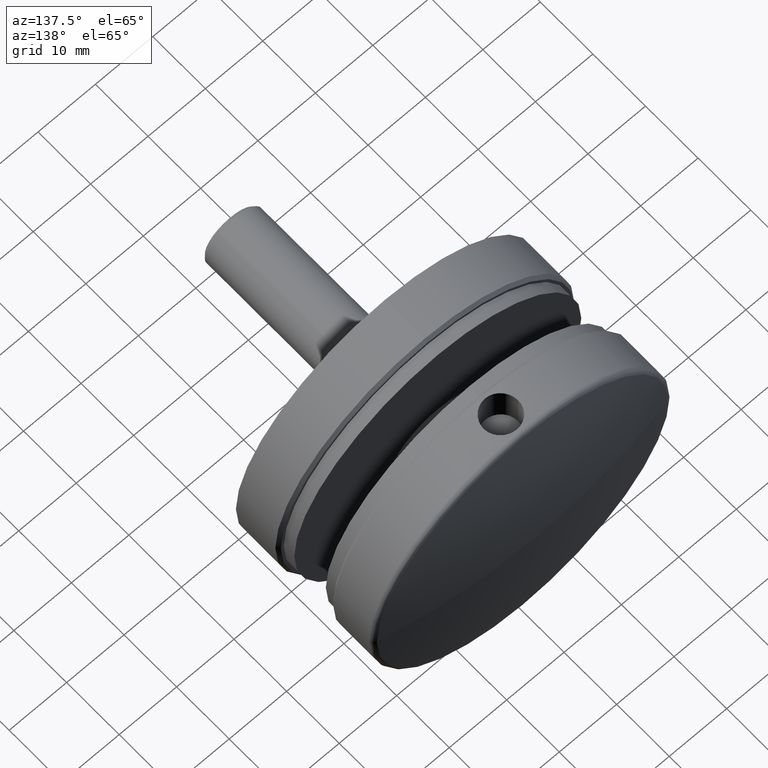
[diagram: clean part render]
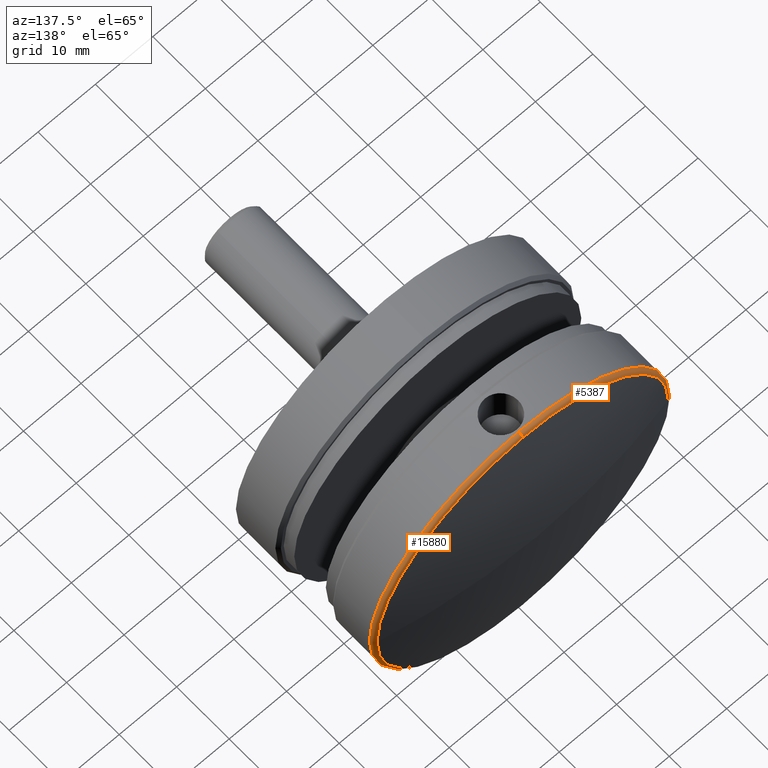
[diagram: same view with one multi-face feature highlighted, each face labeled with its STEP entity id]
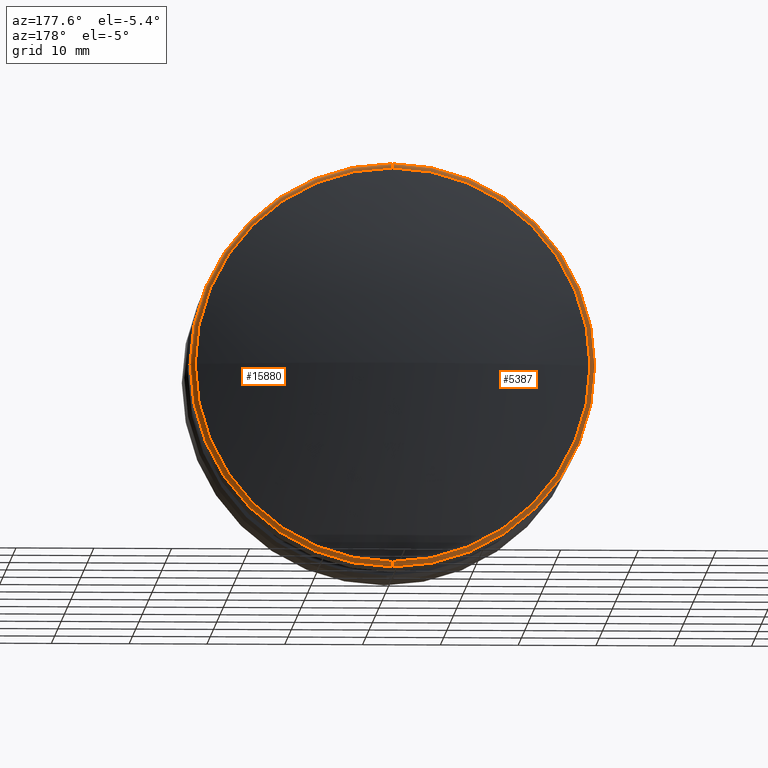
[diagram: same view with one multi-face feature highlighted, each face labeled with its STEP entity id]
A machine part, auxiliary view. The highlighted faces form ONE feature: a constant-radius fillet chain: 2 tangent blend faces with common blend radius 0.8 mm. The faces share edges in the B-rep.
A second angle (auxiliary view) of the same feature is appended — it is thin or edge-on in the first view.
Their STEP definitions:
[1] entity #15880 (Torus):
#37 = VERTEX_POINT ( 'NONE', #9659 ) ;
#276 = ORIENTED_EDGE ( 'NONE', *, *, #13153, .F. ) ;
#1598 = AXIS2_PLACEMENT_3D ( 'NONE', #4787, #16394, #8671 ) ;
#1673 = DIRECTION ( 'NONE',  ( -0.000000000000000000, -1.000000000000000000, -0.000000000000000000 ) ) ;
#1746 = EDGE_CURVE ( 'NONE', #2749, #10591, #14988, .T. ) ;
#1826 = DIRECTION ( 'NONE',  ( -1.224646799147353947E-16, 0.000000000000000000, -1.000000000000000000 ) ) ;
#1861 = DIRECTION ( 'NONE',  ( -0.000000000000000000, -1.000000000000000000, -0.000000000000000000 ) ) ;
#2610 = EDGE_LOOP ( 'NONE', ( #5706, #16255, #276, #7848, #4700 ) ) ;
#2705 = CIRCLE ( 'NONE', #8591, 25.37783004998528824 ) ;
#2749 = VERTEX_POINT ( 'NONE', #8586 ) ;
#3250 = CARTESIAN_POINT ( 'NONE',  ( 0.000000000000000000, 15.36369618043119800, -25.99999999999999645 ) ) ;
#3636 = VERTEX_POINT ( 'NONE', #3250 ) ;
#4402 = CARTESIAN_POINT ( 'NONE',  ( 0.000000000000000000, 15.36369618043119800, 0.000000000000000000 ) ) ;
#4409 = EDGE_CURVE ( 'NONE', #37, #3636, #12083, .T. ) ;
#4700 = ORIENTED_EDGE ( 'NONE', *, *, #5586, .T. ) ;
#4724 = DIRECTION ( 'NONE',  ( -0.000000000000000000, -1.000000000000000000, -0.000000000000000000 ) ) ;
#4787 = CARTESIAN_POINT ( 'NONE',  ( 0.000000000000000000, 15.36369618043119800, -25.19999999999999929 ) ) ;
#5011 = DIRECTION ( 'NONE',  ( 0.000000000000000000, 0.000000000000000000, -1.000000000000000000 ) ) ;
#5586 = EDGE_CURVE ( 'NONE', #37, #13995, #10742, .T. ) ;
#5706 = ORIENTED_EDGE ( 'NONE', *, *, #10330, .T. ) ;
#6979 = CARTESIAN_POINT ( 'NONE',  ( 3.086109933851330151E-15, 15.36369618043119800, 25.19999999999999929 ) ) ;
#7116 = AXIS2_PLACEMENT_3D ( 'NONE', #6979, #9475, #1826 ) ;
#7189 = DIRECTION ( 'NONE',  ( 0.000000000000000000, 0.000000000000000000, -1.000000000000000000 ) ) ;
#7285 = CIRCLE ( 'NONE', #7995, 25.99999999999999645 ) ;
#7460 = CARTESIAN_POINT ( 'NONE',  ( 3.184081677783118191E-15, 15.36369618043119800, 25.99999999999999645 ) ) ;
#7504 = CARTESIAN_POINT ( 'NONE',  ( 0.000000000000000000, 16.14368109908169302, 0.000000000000000000 ) ) ;
#7848 = ORIENTED_EDGE ( 'NONE', *, *, #4409, .F. ) ;
#7995 = AXIS2_PLACEMENT_3D ( 'NONE', #4402, #1861, #7189 ) ;
#8251 = CARTESIAN_POINT ( 'NONE',  ( 0.000000000000000000, 15.36369618043119800, 0.000000000000000000 ) ) ;
#8586 = CARTESIAN_POINT ( 'NONE',  ( 3.145984755892558472E-15, 16.14368109908169302, 25.37783004998528824 ) ) ;
#8591 = AXIS2_PLACEMENT_3D ( 'NONE', #12334, #4724, #12386 ) ;
#8671 = DIRECTION ( 'NONE',  ( 0.000000000000000000, 0.000000000000000000, 1.000000000000000000 ) ) ;
#9475 = DIRECTION ( 'NONE',  ( 1.000000000000000000, 0.000000000000000000, -1.224646799147353207E-16 ) ) ;
#9659 = CARTESIAN_POINT ( 'NONE',  ( 0.000000000000000000, 16.14368109908169302, -25.37783004998528824 ) ) ;
#10194 = DIRECTION ( 'NONE',  ( -0.000000000000000000, -1.000000000000000000, -0.000000000000000000 ) ) ;
#10330 = EDGE_CURVE ( 'NONE', #13995, #2749, #2705, .T. ) ;
#10591 = VERTEX_POINT ( 'NONE', #7460 ) ;
#10742 = CIRCLE ( 'NONE', #16213, 25.37783004998528824 ) ;
#12083 = CIRCLE ( 'NONE', #1598, 0.7999999999999951594 ) ;
#12334 = CARTESIAN_POINT ( 'NONE',  ( 0.000000000000000000, 16.14368109908169302, 0.000000000000000000 ) ) ;
#12335 = CARTESIAN_POINT ( 'NONE',  ( 25.37783004998529535, 16.14368109908169302, 0.000000000000000000 ) ) ;
#12374 = DIRECTION ( 'NONE',  ( 0.000000000000000000, 0.000000000000000000, -1.000000000000000000 ) ) ;
#12386 = DIRECTION ( 'NONE',  ( 0.000000000000000000, 0.000000000000000000, -1.000000000000000000 ) ) ;
#13153 = EDGE_CURVE ( 'NONE', #3636, #10591, #7285, .T. ) ;
#13995 = VERTEX_POINT ( 'NONE', #12335 ) ;
#14669 = FACE_OUTER_BOUND ( 'NONE', #2610, .T. ) ;
#14904 = AXIS2_PLACEMENT_3D ( 'NONE', #8251, #1673, #12374 ) ;
#14988 = CIRCLE ( 'NONE', #7116, 0.7999999999999951594 ) ;
#15521 = TOROIDAL_SURFACE ( 'NONE', #14904, 25.19999999999999929, 0.7999999999999949374 ) ;
#15880 = ADVANCED_FACE ( 'NONE', ( #14669 ), #15521, .T. ) ;
#16213 = AXIS2_PLACEMENT_3D ( 'NONE', #7504, #10194, #5011 ) ;
#16255 = ORIENTED_EDGE ( 'NONE', *, *, #1746, .T. ) ;
#16394 = DIRECTION ( 'NONE',  ( -1.000000000000000000, 0.000000000000000000, 0.000000000000000000 ) ) ;
[2] entity #5387 (Torus):
#37 = VERTEX_POINT ( 'NONE', #9659 ) ;
#1220 = ORIENTED_EDGE ( 'NONE', *, *, #10697, .T. ) ;
#1598 = AXIS2_PLACEMENT_3D ( 'NONE', #4787, #16394, #8671 ) ;
#1746 = EDGE_CURVE ( 'NONE', #2749, #10591, #14988, .T. ) ;
#1826 = DIRECTION ( 'NONE',  ( -1.224646799147353947E-16, 0.000000000000000000, -1.000000000000000000 ) ) ;
#2133 = CARTESIAN_POINT ( 'NONE',  ( 0.000000000000000000, 15.36369618043119800, 0.000000000000000000 ) ) ;
#2377 = ORIENTED_EDGE ( 'NONE', *, *, #4409, .T. ) ;
#2452 = CARTESIAN_POINT ( 'NONE',  ( -25.37783004998529535, 16.14368109908169302, 3.107887834002000330E-15 ) ) ;
#2749 = VERTEX_POINT ( 'NONE', #8586 ) ;
#2782 = TOROIDAL_SURFACE ( 'NONE', #14704, 25.19999999999999929, 0.7999999999999949374 ) ;
#3250 = CARTESIAN_POINT ( 'NONE',  ( 0.000000000000000000, 15.36369618043119800, -25.99999999999999645 ) ) ;
#3422 = DIRECTION ( 'NONE',  ( 0.000000000000000000, 0.000000000000000000, -1.000000000000000000 ) ) ;
#3635 = EDGE_CURVE ( 'NONE', #10591, #3636, #10925, .T. ) ;
#3636 = VERTEX_POINT ( 'NONE', #3250 ) ;
#3755 = CARTESIAN_POINT ( 'NONE',  ( 0.000000000000000000, 15.36369618043119800, 0.000000000000000000 ) ) ;
#4173 = EDGE_CURVE ( 'NONE', #4795, #37, #10314, .T. ) ;
#4409 = EDGE_CURVE ( 'NONE', #37, #3636, #12083, .T. ) ;
#4417 = DIRECTION ( 'NONE',  ( 0.000000000000000000, 0.000000000000000000, -1.000000000000000000 ) ) ;
#4787 = CARTESIAN_POINT ( 'NONE',  ( 0.000000000000000000, 15.36369618043119800, -25.19999999999999929 ) ) ;
#4794 = ORIENTED_EDGE ( 'NONE', *, *, #3635, .F. ) ;
#4795 = VERTEX_POINT ( 'NONE', #2452 ) ;
#5318 = CIRCLE ( 'NONE', #6246, 25.37783004998528824 ) ;
#5387 = ADVANCED_FACE ( 'NONE', ( #8362 ), #2782, .T. ) ;
#6246 = AXIS2_PLACEMENT_3D ( 'NONE', #13671, #14998, #4417 ) ;
#6979 = CARTESIAN_POINT ( 'NONE',  ( 3.086109933851330151E-15, 15.36369618043119800, 25.19999999999999929 ) ) ;
#7116 = AXIS2_PLACEMENT_3D ( 'NONE', #6979, #9475, #1826 ) ;
#7460 = CARTESIAN_POINT ( 'NONE',  ( 3.184081677783118191E-15, 15.36369618043119800, 25.99999999999999645 ) ) ;
#8362 = FACE_OUTER_BOUND ( 'NONE', #9388, .T. ) ;
#8586 = CARTESIAN_POINT ( 'NONE',  ( 3.145984755892558472E-15, 16.14368109908169302, 25.37783004998528824 ) ) ;
#8671 = DIRECTION ( 'NONE',  ( 0.000000000000000000, 0.000000000000000000, 1.000000000000000000 ) ) ;
#9388 = EDGE_LOOP ( 'NONE', ( #13414, #1220, #14127, #2377, #4794 ) ) ;
#9475 = DIRECTION ( 'NONE',  ( 1.000000000000000000, 0.000000000000000000, -1.224646799147353207E-16 ) ) ;
#9659 = CARTESIAN_POINT ( 'NONE',  ( 0.000000000000000000, 16.14368109908169302, -25.37783004998528824 ) ) ;
#9999 = DIRECTION ( 'NONE',  ( 0.000000000000000000, 0.000000000000000000, -1.000000000000000000 ) ) ;
#10314 = CIRCLE ( 'NONE', #16223, 25.37783004998528824 ) ;
#10591 = VERTEX_POINT ( 'NONE', #7460 ) ;
#10697 = EDGE_CURVE ( 'NONE', #2749, #4795, #5318, .T. ) ;
#10925 = CIRCLE ( 'NONE', #16445, 25.99999999999999645 ) ;
#12083 = CIRCLE ( 'NONE', #1598, 0.7999999999999951594 ) ;
#12342 = DIRECTION ( 'NONE',  ( -0.000000000000000000, -1.000000000000000000, -0.000000000000000000 ) ) ;
#12494 = DIRECTION ( 'NONE',  ( -0.000000000000000000, -1.000000000000000000, -0.000000000000000000 ) ) ;
#13414 = ORIENTED_EDGE ( 'NONE', *, *, #1746, .F. ) ;
#13671 = CARTESIAN_POINT ( 'NONE',  ( 0.000000000000000000, 16.14368109908169302, 0.000000000000000000 ) ) ;
#14127 = ORIENTED_EDGE ( 'NONE', *, *, #4173, .T. ) ;
#14704 = AXIS2_PLACEMENT_3D ( 'NONE', #2133, #12342, #3422 ) ;
#14988 = CIRCLE ( 'NONE', #7116, 0.7999999999999951594 ) ;
#14998 = DIRECTION ( 'NONE',  ( -0.000000000000000000, -1.000000000000000000, -0.000000000000000000 ) ) ;
#15145 = DIRECTION ( 'NONE',  ( -0.000000000000000000, -1.000000000000000000, -0.000000000000000000 ) ) ;
#15211 = CARTESIAN_POINT ( 'NONE',  ( 0.000000000000000000, 16.14368109908169302, 0.000000000000000000 ) ) ;
#16223 = AXIS2_PLACEMENT_3D ( 'NONE', #15211, #15145, #16324 ) ;
#16324 = DIRECTION ( 'NONE',  ( 0.000000000000000000, 0.000000000000000000, -1.000000000000000000 ) ) ;
#16394 = DIRECTION ( 'NONE',  ( -1.000000000000000000, 0.000000000000000000, 0.000000000000000000 ) ) ;
#16445 = AXIS2_PLACEMENT_3D ( 'NONE', #3755, #12494, #9999 ) ;